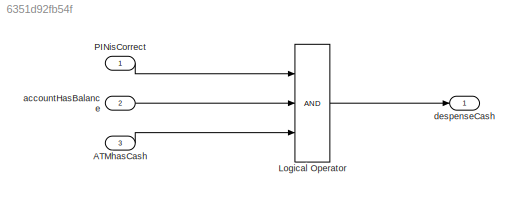
MODEL slx_6351d92fb54f
KIND model
CONFIG AbsTol = auto
CONFIG EnableMultiTasking = off
CONFIG FixedStep = auto
CONFIG MaxStep = auto
CONFIG MinStep = auto
CONFIG RelTol = 1e-3
CONFIG SampleTimeConstraint = Unconstrained
CONFIG Solver = FixedStepAuto
CONFIG SolverName = FixedStepAuto
CONFIG StartTime = 0.0
CONFIG StopTime = 100
BLOCK [Inport] ATMhasCash
  IconDisplay = Port number
  OutDataTypeStr = double
  Port = 3
BLOCK [Logic] Logical Operator
  AllPortsSameDT = off
  Inputs = 3
  OutDataTypeStr = boolean
  Ports = [3, 1]
BLOCK [Inport] PINisCorrect
  IconDisplay = Port number
  OutDataTypeStr = double
BLOCK [Inport] accountHasBalance
  IconDisplay = Port number
  OutDataTypeStr = double
  Port = 2
BLOCK [Outport] despenseCash
  IconDisplay = Port number
LINE ATMhasCash:1 -> Logical Operator:3
LINE Logical Operator:1 -> despenseCash:1
LINE PINisCorrect:1 -> Logical Operator:1
LINE accountHasBalance:1 -> Logical Operator:2
